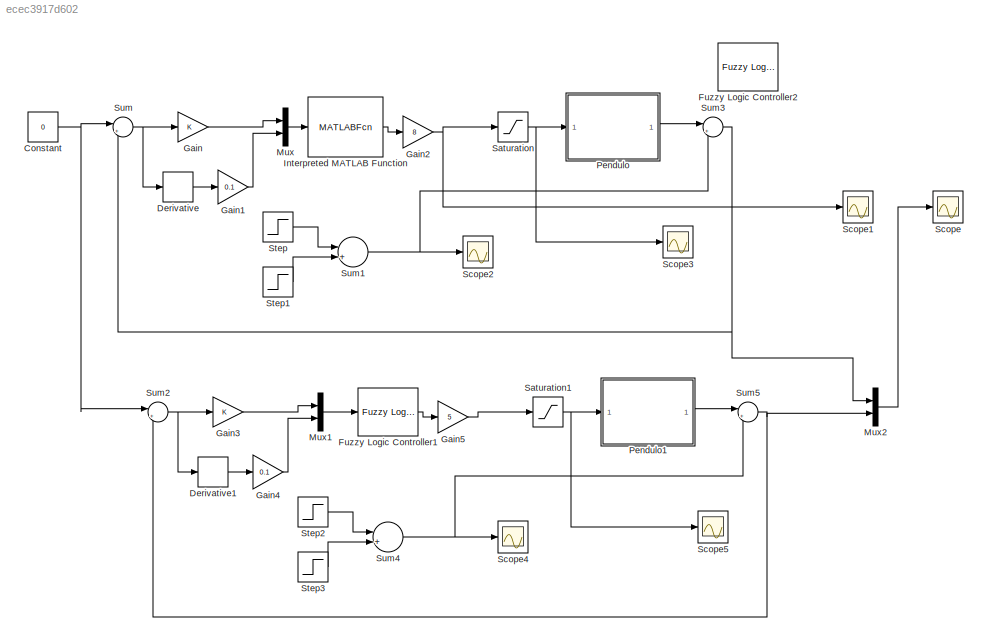
MODEL slx_ecec3917d602
KIND model
BLOCK [Constant] Constant
  Value = 0
BLOCK [Derivative] Derivative
BLOCK [Derivative] Derivative1
BLOCK [Reference] Fuzzy Logic Controller1  REF=fuzblock/Fuzzy Logic   (lib defined in mdl_858b3b3e7478)
Controller
  Ports = [1, 1]
  SourceBlock = fuzblock/Fuzzy Logic \nController
  SourceType = FIS
  fis = [PenduloSug]
BLOCK [Reference] Fuzzy Logic Controller2  REF=fuzblock/Fuzzy Logic   (lib defined in mdl_858b3b3e7478)
Controller
  Ports = [1, 1]
  SourceBlock = fuzblock/Fuzzy Logic \nController
  SourceType = FIS
  fis = [PenduloMan]
BLOCK [Gain] Gain
  OutDataTypeStr = Inherit: Inherit via internal rule
  ParamDataTypeStr = Inherit: Inherit via internal rule
  SaturateOnIntegerOverflow = off
BLOCK [Gain] Gain1
  Gain = 0.1
  OutDataTypeStr = Inherit: Inherit via internal rule
  ParamDataTypeStr = Inherit: Inherit via internal rule
  SaturateOnIntegerOverflow = off
BLOCK [Gain] Gain2
  Gain = 8
  OutDataTypeStr = Inherit: Inherit via internal rule
  ParamDataTypeStr = Inherit: Inherit via internal rule
  SaturateOnIntegerOverflow = off
BLOCK [Gain] Gain3
  OutDataTypeStr = Inherit: Inherit via internal rule
  ParamDataTypeStr = Inherit: Inherit via internal rule
  SaturateOnIntegerOverflow = off
BLOCK [Gain] Gain4
  Gain = 0.1
  OutDataTypeStr = Inherit: Inherit via internal rule
  ParamDataTypeStr = Inherit: Inherit via internal rule
  SaturateOnIntegerOverflow = off
BLOCK [Gain] Gain5
  Gain = 5
  OutDataTypeStr = Inherit: Inherit via internal rule
  ParamDataTypeStr = Inherit: Inherit via internal rule
  SaturateOnIntegerOverflow = off
BLOCK [MATLABFcn] Interpreted MATLAB Function
  MATLABFcn = evalfis(u,PenduloMan)
  Ports = [1, 1]
BLOCK [Mux] Mux
  DisplayOption = bar
  Inputs = 2
  Ports = [2, 1]
BLOCK [Mux] Mux1
  DisplayOption = bar
  Inputs = 2
  Ports = [2, 1]
BLOCK [Mux] Mux2
  DisplayOption = bar
  Inputs = 2
  Ports = [2, 1]
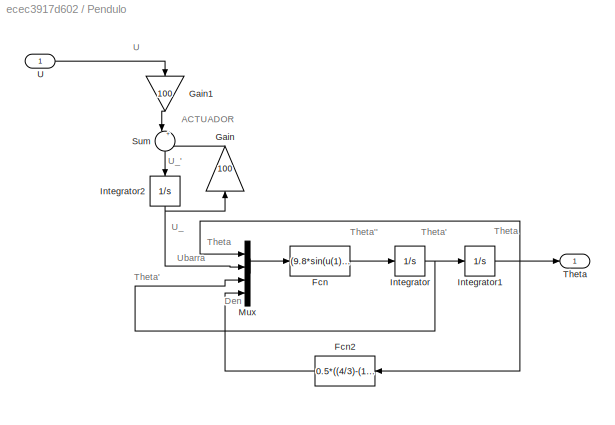
BLOCK [SubSystem] Pendulo
  Ports = [1, 1]
  RequestExecContextInheritance = off
BLOCK [Fcn] Pendulo/Fcn
  Expr = (9.8*sin(u(1))+cos(u(1))*(((-u(2)-0.25*u(3)^2*sin(u(1)))))/1.5)/u(4)
BLOCK [Fcn] Pendulo/Fcn2
  Expr = 0.5*((4/3)-(1/3*(cos(u(1)))^2))
BLOCK [Gain] Pendulo/Gain
  Gain = 100
BLOCK [Gain] Pendulo/Gain1
  Gain = 100
BLOCK [Integrator] Pendulo/Integrator
  Ports = [1, 1]
BLOCK [Integrator] Pendulo/Integrator1
  InitialCondition = 0.2
  Ports = [1, 1]
BLOCK [Integrator] Pendulo/Integrator2
  InitialCondition = 0.01
  Ports = [1, 1]
BLOCK [Mux] Pendulo/Mux
  DisplayOption = bar
  Ports = [4, 1]
BLOCK [Sum] Pendulo/Sum
  IconShape = round
  Inputs = |+-
  Ports = [2, 1]
BLOCK [Outport] Pendulo/Theta
  IconDisplay = Port number
BLOCK [Inport] Pendulo/U
  IconDisplay = Port number
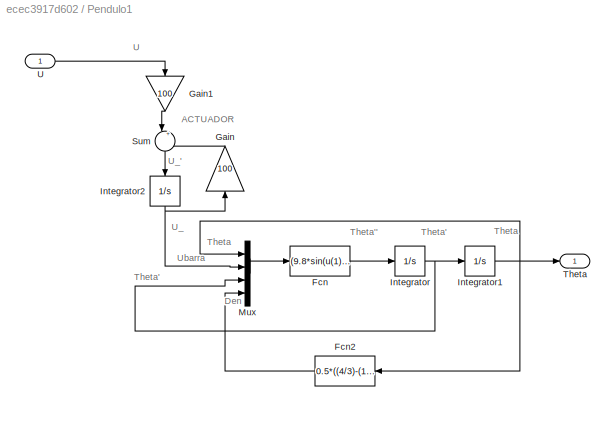
BLOCK [SubSystem] Pendulo1
  Ports = [1, 1]
  RequestExecContextInheritance = off
BLOCK [Fcn] Pendulo1/Fcn
  Expr = (9.8*sin(u(1))+cos(u(1))*(((-u(2)-0.25*u(3)^2*sin(u(1)))))/1.5)/u(4)
BLOCK [Fcn] Pendulo1/Fcn2
  Expr = 0.5*((4/3)-(1/3*(cos(u(1)))^2))
BLOCK [Gain] Pendulo1/Gain
  Gain = 100
BLOCK [Gain] Pendulo1/Gain1
  Gain = 100
BLOCK [Integrator] Pendulo1/Integrator
  Ports = [1, 1]
BLOCK [Integrator] Pendulo1/Integrator1
  InitialCondition = 0.2
  Ports = [1, 1]
BLOCK [Integrator] Pendulo1/Integrator2
  InitialCondition = 0.01
  Ports = [1, 1]
BLOCK [Mux] Pendulo1/Mux
  DisplayOption = bar
  Ports = [4, 1]
BLOCK [Sum] Pendulo1/Sum
  IconShape = round
  Inputs = |+-
  Ports = [2, 1]
BLOCK [Outport] Pendulo1/Theta
  IconDisplay = Port number
BLOCK [Inport] Pendulo1/U
  IconDisplay = Port number
BLOCK [Saturate] Saturation
  InputPortMap = u0
  LowerLimit = -10
  Ports = [1, 1]
  UpperLimit = 10
BLOCK [Saturate] Saturation1
  InputPortMap = u0
  LowerLimit = -10
  Ports = [1, 1]
  UpperLimit = 10
BLOCK [Scope] Scope
  DataFormat = StructureWithTime
  Floating = off
  MaxDataPoints = 50000
  NumInputPorts = 1
  Ports = [1]
  SampleTime = 0
  ShowLegends = off
  TimeRange = 10
  YMax = 0.25
  YMin = -0.4
BLOCK [Scope] Scope1
  DataFormat = StructureWithTime
  Floating = off
  MaxDataPoints = 50000
  NumInputPorts = 1
  Ports = [1]
  SampleTime = 0
  SaveName = ScopeData1
  ShowLegends = off
  TimeRange = 10
  YMax = 10
  YMin = -15
BLOCK [Scope] Scope2
  DataFormat = StructureWithTime
  Floating = off
  MaxDataPoints = 50000
  NumInputPorts = 1
  Ports = [1]
  SampleTime = 0
  SaveName = ScopeData2
  ShowLegends = off
  TimeRange = 10
  YMax = 1
  YMin = -1
BLOCK [Scope] Scope3
  DataFormat = StructureWithTime
  Floating = off
  MaxDataPoints = 50000
  NumInputPorts = 1
  Ports = [1]
  SampleTime = 0
  SaveName = ScopeData3
  ShowLegends = off
  TimeRange = 100
  YMax = 0.1
  YMin = 0.055
BLOCK [Scope] Scope4
  DataFormat = StructureWithTime
  Floating = off
  MaxDataPoints = 50000
  NumInputPorts = 1
  Ports = [1]
  SampleTime = 0
  SaveName = ScopeData4
  ShowLegends = off
  TimeRange = 10
  YMax = 1
  YMin = -1
BLOCK [Scope] Scope5
  DataFormat = StructureWithTime
  Floating = off
  MaxDataPoints = 50000
  NumInputPorts = 1
  Ports = [1]
  SampleTime = 0
  SaveName = ScopeData5
  ShowLegends = off
  TimeRange = 100
  YMax = 0.1
  YMin = 0.055
BLOCK [Step] Step
  After = 0.2
  SampleTime = 0
  Time = 4
BLOCK [Step] Step1
  After = -0.2
  SampleTime = 0
  Time = 5
BLOCK [Step] Step2
  After = 0.2
  SampleTime = 0
  Time = 4
BLOCK [Step] Step3
  After = -0.2
  SampleTime = 0
  Time = 5
BLOCK [Sum] Sum
  IconShape = round
  InputSameDT = off
  Inputs = |+-
  OutDataTypeStr = Inherit: Inherit via internal rule
  Ports = [2, 1]
  SaturateOnIntegerOverflow = off
BLOCK [Sum] Sum1
  IconShape = round
  InputSameDT = off
  Inputs = |++
  OutDataTypeStr = Inherit: Inherit via internal rule
  Ports = [2, 1]
  SaturateOnIntegerOverflow = off
BLOCK [Sum] Sum2
  IconShape = round
  InputSameDT = off
  Inputs = |+-
  OutDataTypeStr = Inherit: Inherit via internal rule
  Ports = [2, 1]
  SaturateOnIntegerOverflow = off
BLOCK [Sum] Sum3
  IconShape = round
  InputSameDT = off
  Inputs = |++
  OutDataTypeStr = Inherit: Inherit via internal rule
  Ports = [2, 1]
  SaturateOnIntegerOverflow = off
BLOCK [Sum] Sum4
  IconShape = round
  InputSameDT = off
  Inputs = |++
  OutDataTypeStr = Inherit: Inherit via internal rule
  Ports = [2, 1]
  SaturateOnIntegerOverflow = off
BLOCK [Sum] Sum5
  IconShape = round
  InputSameDT = off
  Inputs = |++
  OutDataTypeStr = Inherit: Inherit via internal rule
  Ports = [2, 1]
  SaturateOnIntegerOverflow = off
ANNOTATION Pendulo: ACTUADOR
ANNOTATION Pendulo: Den
ANNOTATION Pendulo: Theta
ANNOTATION Pendulo: Theta'
ANNOTATION Pendulo: Theta''
ANNOTATION Pendulo: U
ANNOTATION Pendulo: U_
ANNOTATION Pendulo: U_'
ANNOTATION Pendulo: Ubarra
ANNOTATION Pendulo1: ACTUADOR
ANNOTATION Pendulo1: Den
ANNOTATION Pendulo1: Theta
ANNOTATION Pendulo1: Theta'
ANNOTATION Pendulo1: Theta''
ANNOTATION Pendulo1: U
ANNOTATION Pendulo1: U_
ANNOTATION Pendulo1: U_'
ANNOTATION Pendulo1: Ubarra
NET Constant:1 -> Sum2:1, Sum:1
LINE Derivative1:1 -> Gain4:1
LINE Derivative:1 -> Gain1:1
LINE Fuzzy Logic Controller1:1 -> Gain5:1
LINE Gain1:1 -> Mux:2
NET Gain2:1 -> Saturation:1, Scope1:1
LINE Gain3:1 -> Mux1:1
LINE Gain4:1 -> Mux1:2
LINE Gain5:1 -> Saturation1:1
LINE Gain:1 -> Mux:1
LINE Interpreted MATLAB Function:1 -> Gain2:1
LINE Mux1:1 -> Fuzzy Logic Controller1:1
LINE Mux2:1 -> Scope:1
LINE Mux:1 -> Interpreted MATLAB Function:1
LINE Pendulo/Fcn2:1 -> Pendulo/Mux:4
LINE Pendulo/Fcn:1 -> Pendulo/Integrator:1
LINE Pendulo/Gain1:1 -> Pendulo/Sum:1
LINE Pendulo/Gain:1 -> Pendulo/Sum:2
NET Pendulo/Integrator1:1 -> Pendulo/Fcn2:1, Pendulo/Mux:1, Pendulo/Theta:1
NET Pendulo/Integrator2:1 -> Pendulo/Gain:1, Pendulo/Mux:2
NET Pendulo/Integrator:1 -> Pendulo/Integrator1:1, Pendulo/Mux:3
LINE Pendulo/Mux:1 -> Pendulo/Fcn:1
LINE Pendulo/Sum:1 -> Pendulo/Integrator2:1
LINE Pendulo/U:1 -> Pendulo/Gain1:1
LINE Pendulo1/Fcn2:1 -> Pendulo1/Mux:4
LINE Pendulo1/Fcn:1 -> Pendulo1/Integrator:1
LINE Pendulo1/Gain1:1 -> Pendulo1/Sum:1
LINE Pendulo1/Gain:1 -> Pendulo1/Sum:2
NET Pendulo1/Integrator1:1 -> Pendulo1/Fcn2:1, Pendulo1/Mux:1, Pendulo1/Theta:1
NET Pendulo1/Integrator2:1 -> Pendulo1/Gain:1, Pendulo1/Mux:2
NET Pendulo1/Integrator:1 -> Pendulo1/Integrator1:1, Pendulo1/Mux:3
LINE Pendulo1/Mux:1 -> Pendulo1/Fcn:1
LINE Pendulo1/Sum:1 -> Pendulo1/Integrator2:1
LINE Pendulo1/U:1 -> Pendulo1/Gain1:1
LINE Pendulo1:1 -> Sum5:1
LINE Pendulo:1 -> Sum3:1
NET Saturation1:1 -> Pendulo1:1, Scope5:1
NET Saturation:1 -> Pendulo:1, Scope3:1
LINE Step1:1 -> Sum1:2
LINE Step2:1 -> Sum4:1
LINE Step3:1 -> Sum4:2
LINE Step:1 -> Sum1:1
NET Sum1:1 -> Scope2:1, Sum3:2
NET Sum2:1 -> Derivative1:1, Gain3:1
NET Sum3:1 -> Mux2:1, Sum:2
NET Sum4:1 -> Scope4:1, Sum5:2
NET Sum5:1 -> Mux2:2, Sum2:2
NET Sum:1 -> Derivative:1, Gain:1
note: NET lines group one-source signal fan-out (src -> all destinations, sorted); 1:1 wires keep LINE
